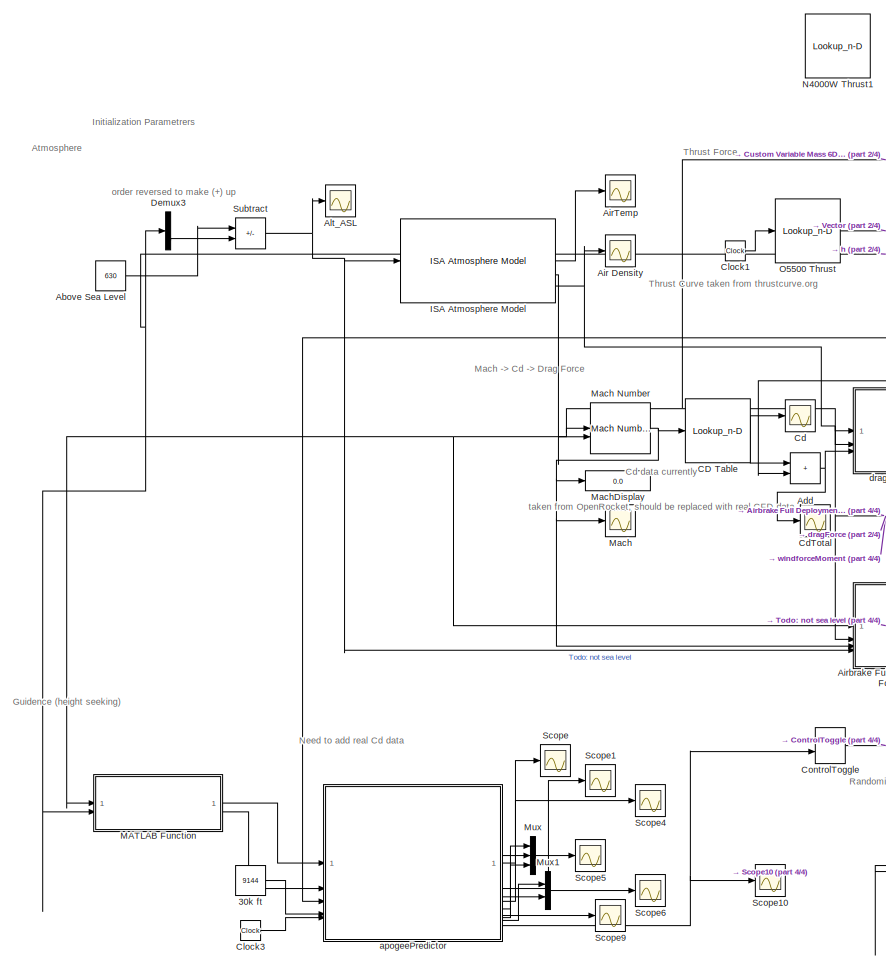
[diagram: root canvas - part 1/4, left side, full height]
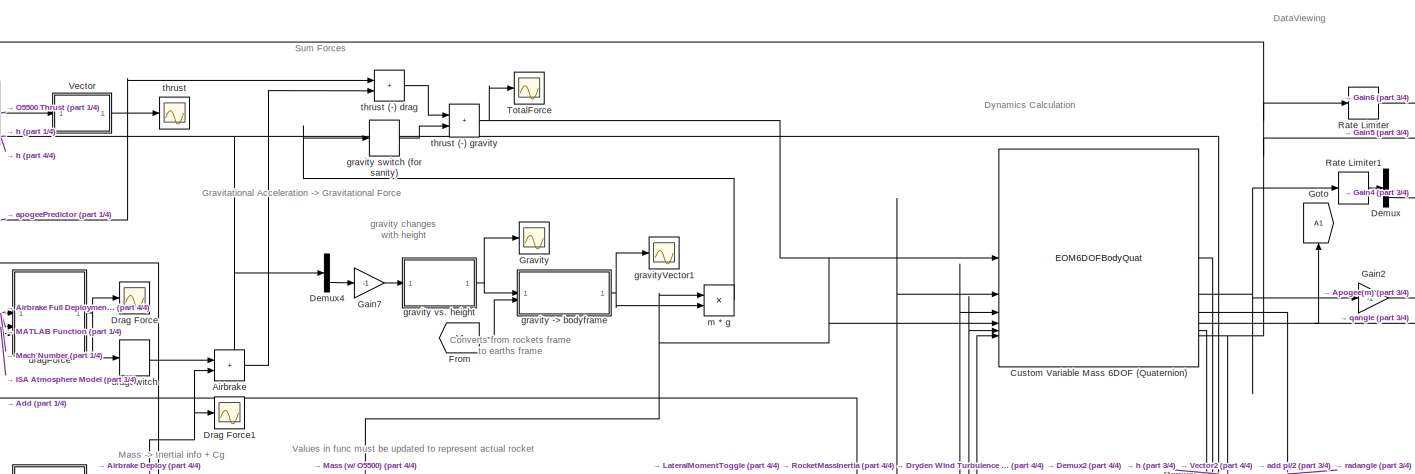
[diagram: root canvas - part 2/4, central region]
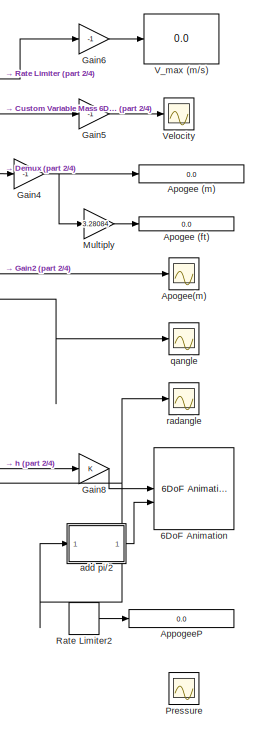
[diagram: root canvas - part 3/4, middle right region]
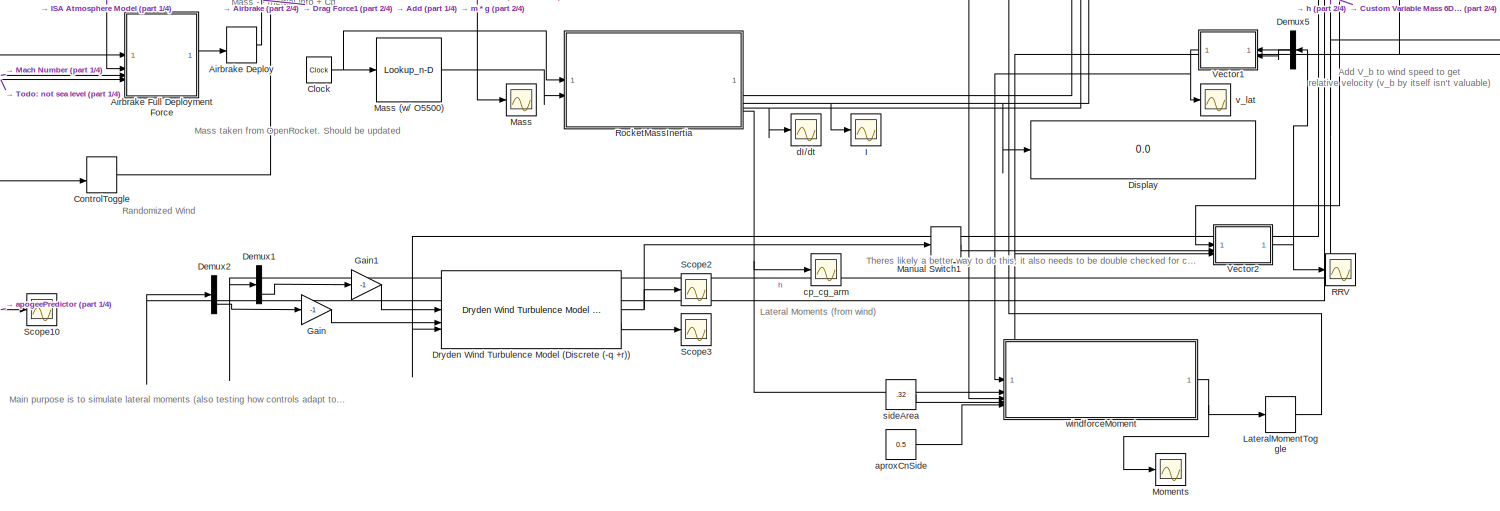
[diagram: root canvas - part 4/4, bottom center region]
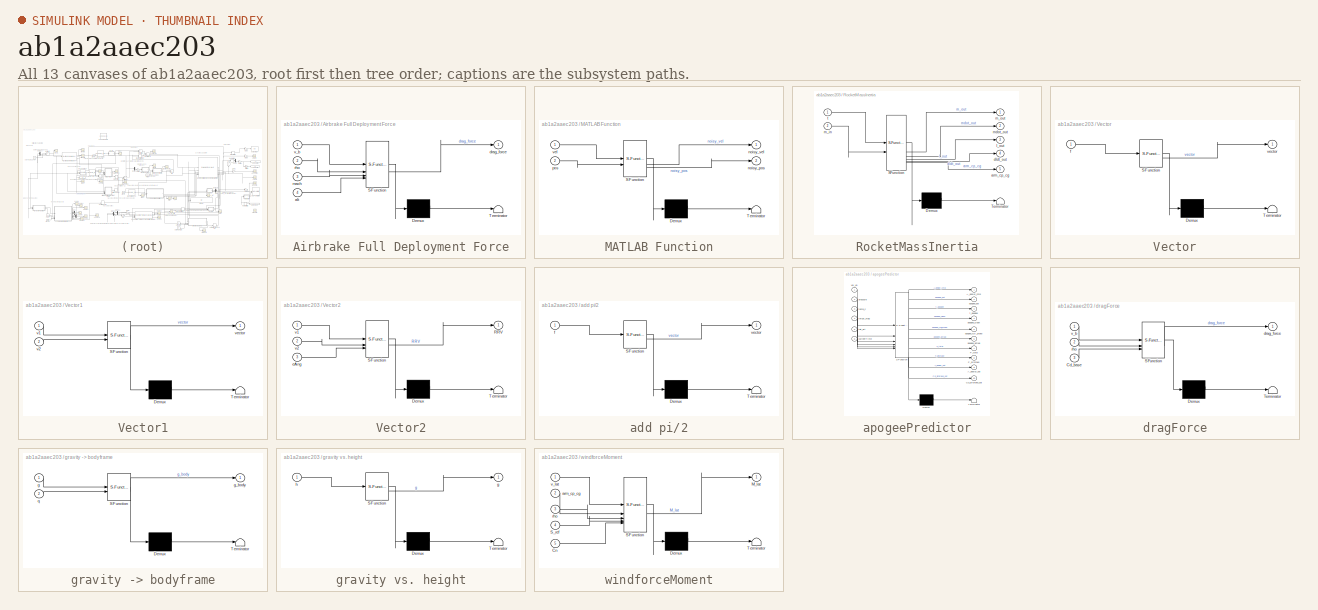
[diagram: thumbnail index - all 13 canvases of the model, root first then tree order]
MODEL slx_ab1a2aaec203
KIND model
CONFIG AbsTol = auto
CONFIG EnableMultiTasking = off
CONFIG FixedStep = auto
CONFIG MaxStep = 0.001
CONFIG MinStep = auto
CONFIG RelTol = 1e-3
CONFIG SampleTimeConstraint = Unconstrained
CONFIG SolverName = VariableStepAuto
CONFIG StartTime = 0.0
CONFIG StopTime = 65
WORKSPACE source: mxarray member
WORKSPACE bca: Simulink.Parameter (value not decoded)
WORKSPACE brakeAngle: Simulink.Parameter (value not decoded)
BLOCK [Constant] 30k ft
  Value = 9144
BLOCK [Reference] 6DoF Animation  REF=aerolibanim/6DoF Animation
  SourceBlock = aerolibanim/6DoF Animation
  SourceType = 6DoF_Animation
BLOCK [Constant] Above Sea Level
  Value = 630
BLOCK [Sum] Add
  IconShape = rectangular
BLOCK [Scope] Air Density
  ActiveDisplayYMaximum = 1.3513391175478189
  ActiveDisplayYMinimum = 0.32836250442397086
  DataLoggingVariableName = ScopeData2
  Floating = off
  GraphicalSettings = {"Style":{"BackgroundColor":[0.12941176470588237,0.12941176470588237,0.12941176470588237],"AxesColor":[0.07058823529411765,0.07058823529411765,0.07058823529411765],"LabelsColor":[0.8509803921568627,0.8509803921568627,0.8509803921568627],"PreserveColors":false,"Visible":[true],"LineStyle":["-"],"LineWidth":[1.5],"BarWidth":[0.9],"LineColor":["auto"],"LineFaceAlpha":[1],"LineEdgeAlpha":[1],"Marker":...<+2065ch>
  MultipleDisplayCache = [{"MaxYLimMag":1.2911709104667286,"MaxYLimReal":1.3513391175478189,"MinYLimMag":0.41329307831821793,"MinYLimReal":0.32836250442397086,"PlotAsMagnitudePhase":false,"ShowGrid":true,"ShowLegend":false,"Title":"%<SignalLabel>","YLabel":""}]
  NumInputPorts = 1
  ScopeFrameLocation = window
  WasSavedAsWebScope = on
  WindowPosition = [533.000000,232.000000,560.000000,420.000000,]
BLOCK [Scope] AirTemp
  ActiveDisplayYMaximum = 294.3971353024794
  ActiveDisplayYMinimum = 208.39933334266343
  DataLoggingVariableName = ScopeData5
  Floating = off
  GraphicalSettings = {"AxesScalingProperties":{"AlignXAxis":"Center","AlignYAxis":"Center","AutoScaleXAxisLimits":false,"AxesScaling":"Manual","AxesScalingNumUpdates":10,"ExpandOnly":true,"ScaleAxesLimitsAtStop":false,"XAxisDataRange":100,"YAxisDataRange":80},"DisplayProperties":{"ColorOrder":["auto","auto","auto","auto","auto","auto","auto","auto","auto","auto","auto","auto","auto","auto","auto","auto","auto","auto",...<+2038ch>
  MultipleDisplayCache = [{"MaxYLimMag":291.33520591859337,"MaxYLimReal":294.3971353024794,"MinYLimMag":218.53333188417,"MinYLimReal":208.39933334266343,"PlotAsMagnitudePhase":false,"ShowGrid":true,"ShowLegend":false,"Title":"%<SignalLabel>","YLabel":""}]
  NumInputPorts = 1
  ScopeFrameLocation = window
  WasSavedAsWebScope = on
  WindowPosition = [888.000000,77.000000,560.000000,420.000000,]
BLOCK [Sum] Airbrake
  IconShape = rectangular
BLOCK [ManualSwitch] Airbrake Deploy
BLOCK [SubSystem] Airbrake Full Deployment Force
  ErrorFcn = Stateflow.Translate.translate
  PermitHierarchicalResolution = ExplicitOnly
  SFBlockType = MATLAB Function
  TreatAsAtomicUnit = on
BLOCK [Demux] Airbrake Full Deployment Force/ Demux 
  Outputs = 1
BLOCK [S-Function] Airbrake Full Deployment Force/ SFunction 
  EnableBusSupport = off
  FunctionName = sf_sfun
  PortCounts = [4 2]
  SFcnIsStateOwnerBlock = off
  SFunctionDeploymentMode = off
  Tag = Stateflow S-Function 12
BLOCK [Terminator] Airbrake Full Deployment Force/ Terminator 
BLOCK [Inport] Airbrake Full Deployment Force/alt
  Port = 4
BLOCK [Outport] Airbrake Full Deployment Force/drag_force
BLOCK [Inport] Airbrake Full Deployment Force/mach
  Port = 3
BLOCK [Inport] Airbrake Full Deployment Force/rho
  Port = 2
BLOCK [Inport] Airbrake Full Deployment Force/v_b
BLOCK [Scope] Alt_ASL
  ActiveDisplayYMaximum = 1
  ActiveDisplayYMinimum = -1
  DataLoggingVariableName = ScopeData15
  Floating = off
  GraphicalSettings = {"Style":{"BackgroundColor":[0.12941176470588237,0.12941176470588237,0.12941176470588237],"AxesColor":[0.07058823529411765,0.07058823529411765,0.07058823529411765],"LabelsColor":[0.8509803921568627,0.8509803921568627,0.8509803921568627],"PreserveColors":false,"Visible":[true],"LineStyle":["-"],"LineWidth":[1.5],"BarWidth":[0.9],"LineColor":["auto"],"LineFaceAlpha":[1],"LineEdgeAlpha":[1],"Marker":...<+1898ch>
  MultipleDisplayCache = [{"MaxYLimMag":1,"MaxYLimReal":1,"MinYLimMag":0,"MinYLimReal":-1,"PlotAsMagnitudePhase":false,"ShowGrid":true,"ShowLegend":false,"Title":"%<SignalLabel>","YLabel":""}]
  NumInputPorts = 1
  ScopeFrameLocation = window
  WasSavedAsWebScope = on
  WindowPosition = [620.000000,375.000000,560.000000,420.000000,]
BLOCK [Display] Apogee (ft)
  Decimation = 1
  Format = long
BLOCK [Display] Apogee (m)
  Decimation = 4
  Format = long
BLOCK [Scope] Apogee(m)
  ActiveDisplayYMaximum = 11354.709569858003
  ActiveDisplayYMinimum = -3110.5103645307609
  Floating = off
  GraphicalSettings = {"Style":{"BackgroundColor":[0.12941176470588237,0.12941176470588237,0.12941176470588237],"AxesColor":[0.07058823529411765,0.07058823529411765,0.07058823529411765],"LabelsColor":[0.8509803921568627,0.8509803921568627,0.8509803921568627],"PreserveColors":false,"Visible":[true,true,true],"LineStyle":["-","-","-"],"LineWidth":[1.5,1.5,1.5],"BarWidth":[0.9,0.9,0.9],"LineColor":["auto","auto","auto"],"...<+2226ch>
  MultipleDisplayCache = [{"MaxYLimMag":11001.884939511598,"MaxYLimReal":11354.709569858003,"MinYLimMag":0,"MinYLimReal":-3110.5103645307609,"PlotAsMagnitudePhase":false,"ShowGrid":true,"ShowLegend":false,"Title":"%<SignalLabel>","YLabel":""}]
  NumInputPorts = 1
  ScopeFrameLocation = container
  WasSavedAsWebScope = on
  WindowPosition = [116.000000,107.000000,1280.000000,768.000000,]
BLOCK [Display] AppogeeP
  Decimation = 4
  Format = long
BLOCK [Lookup_n-D] CD Table
  BreakpointsForDimension1 = [0.007, 0.008, 0.01, 0.013, 0.017, 0.024, 0.03, 0.033, 0.037, 0.042, 0.048, 0.051, 0.056, 0.061, 0.067, 0.074, 0.08, 0.086, 0.092, 0.098, 0.102, 0.108, 0.114, 0.12, 0.126, 0.132, 0.138, 0.147, 0.161, 0.182, 0.198, 0.221, 0.248, 0.282, 0.316, 0.34, 0.375, 0.41, 0.432, 0.465, 0.502, 0.538, 0.575, 0.612, 0.647, 0.685, 0.723, 0.76, 0.798, 0.837, 0.858, 0.89, 0.929, 0.968, 1.007, 1.033, 1.071, 1.103, 1...<+432ch>
  InputPortMap = u0
  InternalRulePriority = Speed
  NumberOfTableDimensions = 1
  RndMeth = Simplest
  Table = [0.463, 0.452, 0.425, 0.409, 0.389, 0.367, 0.354, 0.348, 0.341, 0.339, 0.339, 0.339, 0.339, 0.339, 0.339, 0.339, 0.339, 0.339, 0.339, 0.339, 0.339, 0.34, 0.34, 0.34, 0.34, 0.34, 0.34, 0.34, 0.34, 0.34, 0.34, 0.341, 0.341, 0.342, 0.342, 0.343, 0.344, 0.344, 0.345, 0.346, 0.347, 0.349, 0.35, 0.352, 0.354, 0.356, 0.359, 0.362, 0.366, 0.372, 0.375, 0.383, 0.382, 0.377, 0.381, 0.408, 0.427, 0.426, 0.41...<+433ch>
BLOCK [Scope] Cd
  ActiveDisplayYMaximum = 1.8026279606623583
  ActiveDisplayYMinimum = -0.14855998025047912
  DataLoggingVariableName = ScopeData8
  Floating = off
  GraphicalSettings = {"Style":{"BackgroundColor":[0.12941176470588237,0.12941176470588237,0.12941176470588237],"AxesColor":[0.07058823529411765,0.07058823529411765,0.07058823529411765],"LabelsColor":[0.8509803921568627,0.8509803921568627,0.8509803921568627],"PreserveColors":false,"Visible":[true],"LineStyle":["-"],"LineWidth":[1.5],"BarWidth":[0.9],"LineColor":["auto"],"LineFaceAlpha":[1],"LineEdgeAlpha":[1],"Marker":...<+2001ch>
  LayoutDimensionsString = [1,1]
  MultipleDisplayCache = [{"MaxYLimMag":4.985729964710127,"MaxYLimReal":1.8026279606623583,"MinYLimMag":0,"MinYLimReal":-0.14855998025047912,"PlotAsMagnitudePhase":false,"ShowGrid":true,"ShowLegend":false,"Title":"%<SignalLabel>","YLabel":""}]
  NumInputPorts = 1
  ScopeFrameLocation = window
  WasSavedAsWebScope = on
  WindowPosition = [380.000000,217.000000,825.000000,637.000000,]
BLOCK [Scope] CdTotal
  ActiveDisplayYMaximum = 2.158206654782723
  ActiveDisplayYMinimum = -0.16752402901527019
  DataLoggingVariableName = ScopeData20
  Floating = off
  GraphicalSettings = {"Style":{"BackgroundColor":[0.12941176470588237,0.12941176470588237,0.12941176470588237],"AxesColor":[0.07058823529411765,0.07058823529411765,0.07058823529411765],"LabelsColor":[0.8509803921568627,0.8509803921568627,0.8509803921568627],"PreserveColors":false,"Visible":[true],"LineStyle":["-"],"LineWidth":[1.5],"BarWidth":[0.9],"LineColor":["auto"],"LineFaceAlpha":[1],"LineEdgeAlpha":[1],"Marker":...<+1987ch>
  LayoutDimensionsString = [1,1]
  MultipleDisplayCache = [{"MaxYLimMag":4.985729964710127,"MaxYLimReal":2.158206654782723,"MinYLimMag":0,"MinYLimReal":-0.16752402901527019,"PlotAsMagnitudePhase":false,"ShowGrid":true,"ShowLegend":false,"Title":"%<SignalLabel>","YLabel":""}]
  NumInputPorts = 1
  ScopeFrameLocation = container
  WasSavedAsWebScope = on
  WindowPosition = [116.000000,107.000000,1280.000000,768.000000,]
BLOCK [Clock] Clock
BLOCK [Clock] Clock1
  DisplayTime = on
BLOCK [Clock] Clock3
BLOCK [ManualSwitch] ControlToggle
  CurrentSetting = 0
BLOCK [EOM6DOFBodyQuat] Custom Variable Mass 6DOF (Quaternion)
  mtype = Custom Variable
  vre_flag = on
BLOCK [Demux] Demux
  Outputs = 3
BLOCK [Demux] Demux1
  Outputs = 3
BLOCK [Demux] Demux2
  Outputs = 3
BLOCK [Demux] Demux3
  Outputs = 3
BLOCK [Demux] Demux4
  Outputs = 3
BLOCK [Demux] Demux5
  Outputs = 3
BLOCK [Display] Display
  Decimation = 1
BLOCK [Scope] Drag Force
  ActiveDisplayYMaximum = 2083.9665587051204
  ActiveDisplayYMinimum = -997.38496868055154
  DataLoggingVariableName = ScopeData3
  Floating = off
  GraphicalSettings = {"Style":{"BackgroundColor":[0.12941176470588237,0.12941176470588237,0.12941176470588237],"AxesColor":[0.07058823529411765,0.07058823529411765,0.07058823529411765],"LabelsColor":[0.8509803921568627,0.8509803921568627,0.8509803921568627],"PreserveColors":false,"Visible":[true,true,true],"LineStyle":["-","-","-"],"LineWidth":[1.5,1.5,1.5],"BarWidth":[0.9,0.9,0.9],"LineColor":["auto","auto","auto"],"...<+2248ch>
  MultipleDisplayCache = [{"MaxYLimMag":950.8017425399529,"MaxYLimReal":2083.9665587051204,"MinYLimMag":0,"MinYLimReal":-997.38496868055154,"PlotAsMagnitudePhase":false,"ShowGrid":true,"ShowLegend":false,"Title":"%<SignalLabel>","YLabel":""}]
  NumInputPorts = 1
  ScopeFrameLocation = container
  WasSavedAsWebScope = on
  WindowPosition = [116.000000,107.000000,1280.000000,768.000000,]
BLOCK [Scope] Drag Force1
  ActiveDisplayYMaximum = 1236.5317211338333
  ActiveDisplayYMinimum = -119.15745886307855
  DataLoggingVariableName = ScopeData32
  Floating = off
  GraphicalSettings = {"Style":{"BackgroundColor":[0.12941176470588237,0.12941176470588237,0.12941176470588237],"AxesColor":[0.07058823529411765,0.07058823529411765,0.07058823529411765],"LabelsColor":[0.8509803921568627,0.8509803921568627,0.8509803921568627],"PreserveColors":false,"Visible":[true,true,true],"LineStyle":["-","-","-"],"LineWidth":[1.5,1.5,1.5],"BarWidth":[0.9,0.9,0.9],"LineColor":["auto","auto","auto"],"...<+2286ch>
  MultipleDisplayCache = [{"MaxYLimMag":950.8017425399529,"MaxYLimReal":1236.5317211338333,"MinYLimMag":0,"MinYLimReal":-119.15745886307855,"PlotAsMagnitudePhase":false,"ShowGrid":true,"ShowLegend":false,"Title":"%<SignalLabel>","YLabel":""}]
  NumInputPorts = 1
  ScopeFrameLocation = container
  WasSavedAsWebScope = on
  WindowPosition = [116.000000,107.000000,1280.000000,768.000000,]
BLOCK [Reference] Dryden Wind Turbulence Model (Discrete (-q +r))  REF=aerolibwind2/Dryden Wind Turbulence Model 
(Continuous (+q -r))
  LibrarySourceBlock = aerolibwind2/Dryden Wind Turbulence Model \n(Discrete (-q +r))
  SourceBlock = aerolibwind2/Dryden Wind Turbulence Model \n(Continuous (+q -r))
  SourceType = Wind Turbulence Model
BLOCK [From] From
  GotoTag = A1
BLOCK [Gain] Gain
  Gain = -1
BLOCK [Gain] Gain1
  Gain = -1
BLOCK [Gain] Gain2
  Gain = -1
BLOCK [Gain] Gain4
  Gain = -1
BLOCK [Gain] Gain5
  Gain = -1
BLOCK [Gain] Gain6
  Gain = -1
BLOCK [Gain] Gain7
  Gain = -1
BLOCK [Gain] Gain8
BLOCK [Goto] Goto
  GotoTag = A1
  NameLocation = right
BLOCK [Scope] Gravity
  ActiveDisplayYMaximum = 9.8834339095755688
  ActiveDisplayYMinimum = 9.68035453491508
  DataLoggingVariableName = ScopeData9
  Floating = off
  GraphicalSettings = {"Style":{"BackgroundColor":[0.12941176470588237,0.12941176470588237,0.12941176470588237],"AxesColor":[0.07058823529411765,0.07058823529411765,0.07058823529411765],"LabelsColor":[0.8509803921568627,0.8509803921568627,0.8509803921568627],"PreserveColors":false,"Visible":[true],"LineStyle":["-"],"LineWidth":[1.5],"BarWidth":[0.9],"LineColor":["auto"],"LineFaceAlpha":[1],"LineEdgeAlpha":[1],"Marker":...<+2043ch>
  MultipleDisplayCache = [{"MaxYLimMag":9.8615634071129268,"MaxYLimReal":9.8834339095755688,"MinYLimMag":9.7431739813632916,"MinYLimReal":9.68035453491508,"PlotAsMagnitudePhase":false,"ShowGrid":true,"ShowLegend":false,"Title":"%<SignalLabel>","YLabel":""}]
  NumInputPorts = 1
  ScopeFrameLocation = window
  WasSavedAsWebScope = on
  WindowPosition = [642.000000,90.000000,560.000000,420.000000,]
BLOCK [Scope] I
  ActiveDisplayYMaximum = 8.771099345696328
  ActiveDisplayYMinimum = -2.0972210212356206
  DataLoggingVariableName = ScopeData12
  Floating = off
  GraphicalSettings = {"AxesScalingProperties":{"AlignXAxis":"Center","AlignYAxis":"Center","AutoScaleXAxisLimits":false,"AxesScaling":"Manual","AxesScalingNumUpdates":10,"ExpandOnly":true,"ScaleAxesLimitsAtStop":false,"XAxisDataRange":100,"YAxisDataRange":80},"DisplayProperties":{"ColorOrder":["auto","auto","auto","auto","auto","auto","auto","auto","auto","auto","auto","auto","auto","auto","auto","auto","auto","auto",...<+3240ch>
  MultipleDisplayCache = [{"MaxYLimMag":7.7976677635930756,"MaxYLimReal":8.771099345696328,"MinYLimMag":0,"MinYLimReal":-2.0972210212356206,"PlotAsMagnitudePhase":false,"ShowGrid":true,"ShowLegend":false,"Title":"%<SignalLabel>","YLabel":""}]
  NumInputPorts = 1
  ScopeFrameLocation = window
  WasSavedAsWebScope = on
  WindowPosition = [1068.000000,381.000000,560.000000,420.000000,]
BLOCK [Reference] ISA Atmosphere Model  REF=aerolibatmos2/ISA Atmosphere Model
  SourceBlock = aerolibatmos2/ISA Atmosphere Model
  SourceType = International Standard Atmosphere Model
BLOCK [ManualSwitch] LateralMomentToggle
  CurrentSetting = 0
BLOCK [SubSystem] MATLAB Function
  ErrorFcn = Stateflow.Translate.translate
  PermitHierarchicalResolution = ExplicitOnly
  SFBlockType = MATLAB Function
  TreatAsAtomicUnit = on
BLOCK [Demux] MATLAB Function/ Demux 
  Outputs = 1
BLOCK [S-Function] MATLAB Function/ SFunction 
  EnableBusSupport = off
  FunctionName = sf_sfun
  PortCounts = [2 3]
  SFcnIsStateOwnerBlock = off
  SFunctionDeploymentMode = off
  Tag = Stateflow S-Function 9
BLOCK [Terminator] MATLAB Function/ Terminator 
BLOCK [Outport] MATLAB Function/noisy_pos
  Port = 2
BLOCK [Outport] MATLAB Function/noisy_vel
BLOCK [Inport] MATLAB Function/pos
  Port = 2
BLOCK [Inport] MATLAB Function/vel
BLOCK [Scope] Mach
  ActiveDisplayYMaximum = 2.052851576354866
  ActiveDisplayYMinimum = -0.28015884352453835
  DataLoggingVariableName = ScopeData4
  Floating = off
  GraphicalSettings = {"Style":{"BackgroundColor":[0.12941176470588237,0.12941176470588237,0.12941176470588237],"AxesColor":[0.07058823529411765,0.07058823529411765,0.07058823529411765],"LabelsColor":[0.8509803921568627,0.8509803921568627,0.8509803921568627],"PreserveColors":false,"Visible":[true],"LineStyle":["-"],"LineWidth":[1.5],"BarWidth":[0.9],"LineColor":["auto"],"LineFaceAlpha":[1],"LineEdgeAlpha":[1],"Marker":...<+2007ch>
  LayoutDimensionsString = [1,1]
  MultipleDisplayCache = [{"MaxYLimMag":1.9997232170394896,"MaxYLimReal":2.052851576354866,"MinYLimMag":0,"MinYLimReal":-0.28015884352453835,"PlotAsMagnitudePhase":false,"ShowGrid":true,"ShowLegend":false,"Title":"%<SignalLabel>","YLabel":""}]
  NumInputPorts = 1
  ScopeFrameLocation = window
  WasSavedAsWebScope = on
  WindowPosition = [279.000000,137.000000,825.000000,637.000000,]
BLOCK [Reference] Mach Number  REF=aerolibasang/Mach Number
  SourceBlock = aerolibasang/Mach Number
  SourceType = Mach Number
BLOCK [Display] MachDisplay
  Decimation = 1
BLOCK [ManualSwitch] Manual Switch1
  CurrentSetting = 0
BLOCK [Scope] Mass
  ActiveDisplayYMaximum = 34.057183726794406
  ActiveDisplayYMinimum = 17.378289742266098
  DataLoggingVariableName = ScopeData7
  Floating = off
  GraphicalSettings = {"AxesScalingProperties":{"AlignXAxis":"Center","AlignYAxis":"Center","AutoScaleXAxisLimits":false,"AxesScaling":"Manual","AxesScalingNumUpdates":10,"ExpandOnly":true,"ScaleAxesLimitsAtStop":false,"XAxisDataRange":100,"YAxisDataRange":80},"DisplayProperties":{"ColorOrder":["auto","auto","auto","auto","auto","auto","auto","auto","auto","auto","auto","auto","auto","auto","auto","auto","auto","auto",...<+2056ch>
  MultipleDisplayCache = [{"MaxYLimMag":29.334452813349998,"MaxYLimReal":34.057183726794406,"MinYLimMag":27.010128479850003,"MinYLimReal":17.378289742266098,"PlotAsMagnitudePhase":false,"ShowGrid":true,"ShowLegend":false,"Title":"%<SignalLabel>","YLabel":""}]
  NumInputPorts = 1
  ScopeFrameLocation = window
  WasSavedAsWebScope = on
  WindowPosition = [753.000000,406.000000,560.000000,420.000000,]
BLOCK [Lookup_n-D] Mass (w// O5500)
  BreakpointsForDimension1 = [0, 0.009, 0.019, 0.029, 0.039, 0.044, 0.051, 0.063, 0.073, 0.078, 0.086, 0.094, 0.104, 0.109, 0.117, 0.125, 0.135, 0.147, 0.157, 0.167, 0.177, 0.187, 0.194, 0.204, 0.214, 0.224, 0.234, 0.244, 0.254, 0.269, 0.292, 0.325, 0.35, 0.387, 0.428, 0.478, 0.528, 0.563, 0.613, 0.663, 0.694, 0.74, 0.79, 0.84, 0.891, 0.941, 0.988, 1.038, 1.088, 1.138, 1.188, 1.238, 1.266, 1.308, 1.358, 1.408, 1.458, 1.491, 1...<+505ch>
  BreakpointsForDimension1FirstPoint = 0
  BreakpointsForDimension1Spacing = .05
  ExtrapMethod = Clip
  InputPortMap = u0
  InternalRulePriority = Speed
  NumberOfTableDimensions = 1
  RndMeth = Simplest
  SupportTunableSize = on
  Table = [31.41, 31.41, 31.39, 31.38, 31.36, 31.35, 31.33, 31.29, 31.26, 31.25, 31.22, 31.2, 31.17, 31.15, 31.13, 31.1, 31.07, 31.04, 31.01, 30.98, 30.95, 30.92, 30.9, 30.86, 30.83, 30.8, 30.77, 30.74, 30.71, 30.67, 30.6, 30.5, 30.42, 30.3, 30.17, 30.01, 29.84, 29.73, 29.56, 29.39, 29.29, 29.13, 28.96, 28.79, 28.62, 28.45, 28.28, 28.11, 27.93, 27.76, 27.59, 27.41, 27.32, 27.17, 26.99, 26.82, 26.64, 26.53, ...<+511ch>
  UseLastTableValue = on
BLOCK [Scope] Moments
  ActiveDisplayYMaximum = 0.019814293763566297
  ActiveDisplayYMinimum = -0.037322938130257846
  DataLoggingVariableName = ScopeData19
  Floating = off
  GraphicalSettings = {"AxesScalingProperties":{"AlignXAxis":"Center","AlignYAxis":"Center","AutoScaleXAxisLimits":false,"AxesScaling":"Manual","AxesScalingNumUpdates":10,"ExpandOnly":true,"ScaleAxesLimitsAtStop":false,"XAxisDataRange":100,"YAxisDataRange":80},"DisplayProperties":{"ColorOrder":["auto","auto","auto","auto","auto","auto","auto","auto","auto","auto","auto","auto","auto","auto","auto","auto","auto","auto",...<+2306ch>
  MultipleDisplayCache = [{"MaxYLimMag":0.13966262880515976,"MaxYLimReal":0.019814293763566297,"MinYLimMag":0,"MinYLimReal":-0.037322938130257846,"PlotAsMagnitudePhase":false,"ShowGrid":true,"ShowLegend":false,"Title":"%<SignalLabel>","YLabel":""}]
  NumInputPorts = 1
  ScopeFrameLocation = window
  WasSavedAsWebScope = on
  WindowPosition = [999.000000,238.000000,560.000000,420.000000,]
BLOCK [Gain] Multiply
  Gain = 3.28084
BLOCK [Mux] Mux
  DisplayOption = bar
  Inputs = 3
BLOCK [Mux] Mux1
  DisplayOption = bar
  Inputs = 2
BLOCK [Lookup_n-D] N4000W Thrust1
  BreakpointsForDimension1 = [0.01;0.029;0.03;0.031;0.039;0.049;0.05;0.06;0.07000000000000001;0.078;0.08799999999999999;0.12;0.148;0.247;0.398;0.577;0.774;0.964;1.172;1.341;1.51;1.661;1.837;2.027;2.157;2.295;2.336;2.505;2.633;2.794;2.97;3.131;3.3;3.449;3.547;3.607;3.708;3.825;3.927;4.054;4.205;4.314;4.394;4.462;4.511;4.631;4.761;4.854;4.906]
  Commented = on
  ExtrapMethod = Clip
  InputPortMap = u0
  InternalRulePriority = Speed
  NumberOfTableDimensions = 1
  RndMeth = Simplest
  Table = [39.369999999999997;393.70100000000002;1742.126;2209.6460000000002;2874.0160000000001;2534.4490000000001;3469.4879999999998;3809.0549999999998;4079.7240000000002;4242.1260000000002;4384.8429999999998;4330.7089999999998;4227.3620000000001;4242.1260000000002;4296.2600000000002;4350.3940000000002;4438.9759999999997;4512.7950000000001;4566.9290000000001;4621.0630000000001;4621.0630000000001;4655.51199...<+454ch>
  UseLastTableValue = on
BLOCK [Lookup_n-D] O5500 Thrust
  BreakpointsForDimension1 = [0.009, 0.044, 0.063, 0.078, 0.094, 0.109, 0.125, 0.147, 0.194, 0.35, 0.428, 0.563, 0.694, 0.988, 1.266, 1.491, 1.581, 1.641, 1.684, 1.716, 1.784, 1.938, 2.138, 2.491, 2.6, 2.919, 3.022, 3.138, 3.3, 3.388, 3.441, 3.544, 3.609, 3.688, 3.778, 3.819, 3.853, 3.897, 3.981, 3.997]
  ExtrapMethod = Clip
  InputPortMap = u0
  InternalRulePriority = Speed
  NumberOfTableDimensions = 1
  RndMeth = Simplest
  Table = [20.408, 7112.245, 6734.694, 6897.959, 6612.245, 6765.306, 6540.816, 6581.633, 6520.408, 6795.918, 7091.837, 7285.714, 7408.163, 7581.633, 7622.449, 7724.49, 7653.061, 7540.816, 7500.0, 7336.735, 7224.49, 6785.714, 6326.531, 5897.959, 5704.082, 3540.816, 3408.163, 2887.755, 2234.694, 1673.469, 1489.796, 1418.367, 1295.918, 816.327, 653.061, 581.633, 489.796, 285.714, 20.408, 0.0]
  UseLastTableValue = on
BLOCK [Scope] Pressure
  ActiveDisplayYMaximum = 27734.888035030621
  ActiveDisplayYMinimum = 27434.677675772422
  DataLoggingVariableName = ScopeData28
  Floating = off
  GraphicalSettings = {"AxesScalingProperties":{"AlignXAxis":"Center","AlignYAxis":"Center","AutoScaleXAxisLimits":false,"AxesScaling":"Manual","AxesScalingNumUpdates":10,"ExpandOnly":true,"ScaleAxesLimitsAtStop":false,"XAxisDataRange":100,"YAxisDataRange":80},"DisplayProperties":{"ColorOrder":["auto","auto","auto","auto","auto","auto","auto","auto","auto","auto","auto","auto","auto","auto","auto","auto","auto","auto",...<+2070ch>
  MultipleDisplayCache = [{"MaxYLimMag":102627.31331398874,"MaxYLimReal":27734.888035030621,"MinYLimMag":16175.435142568651,"MinYLimReal":27434.677675772422,"PlotAsMagnitudePhase":false,"ShowGrid":true,"ShowLegend":false,"Title":"%<SignalLabel>","YLabel":""}]
  NumInputPorts = 1
  ScopeFrameLocation = window
  WasSavedAsWebScope = on
  WindowPosition = [620.000000,375.000000,560.000000,420.000000,]
BLOCK [Scope] RRV
  ActiveDisplayYMaximum = 87.725846488197178
  ActiveDisplayYMinimum = -147.82773037596519
  DataLoggingVariableName = ScopeData30
  Floating = off
  GraphicalSettings = {"Style":{"BackgroundColor":[0.12941176470588237,0.12941176470588237,0.12941176470588237],"AxesColor":[0.07058823529411765,0.07058823529411765,0.07058823529411765],"LabelsColor":[0.8509803921568627,0.8509803921568627,0.8509803921568627],"PreserveColors":false,"Visible":[true,true,true],"LineStyle":["-","-","-"],"LineWidth":[1.5,1.5,1.5],"BarWidth":[0.9,0.9,0.9],"LineColor":["auto","auto","auto"],"...<+2234ch>
  MultipleDisplayCache = [{"MaxYLimMag":705.17395728262409,"MaxYLimReal":87.725846488197178,"MinYLimMag":0,"MinYLimReal":-147.82773037596519,"PlotAsMagnitudePhase":false,"ShowGrid":true,"ShowLegend":true,"Title":"%<SignalLabel>","YLabel":""}]
  NumInputPorts = 1
  ScopeFrameLocation = window
  ShowLegend = on
  WasSavedAsWebScope = on
  WindowPosition = [620.000000,184.000000,974.000000,611.000000,]
BLOCK [RateLimiter] Rate Limiter
  FallingSlewLimit = -99999
  RisingSlewLimit = 0
  SampleTimeMode = inherited
BLOCK [RateLimiter] Rate Limiter1
  FallingSlewLimit = -99999
  RisingSlewLimit = 0
  SampleTimeMode = inherited
BLOCK [RateLimiter] Rate Limiter2
  FallingSlewLimit = -99999
  RisingSlewLimit = 0
  SampleTimeMode = inherited
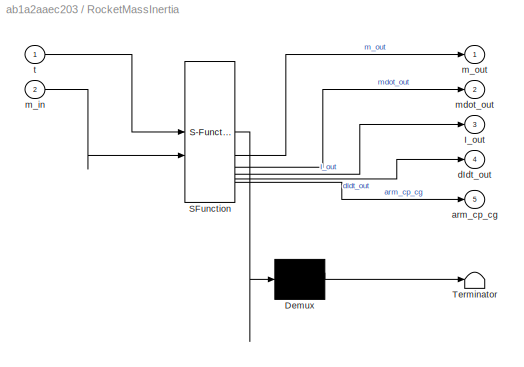
BLOCK [SubSystem] RocketMassInertia
  ErrorFcn = Stateflow.Translate.translate
  PermitHierarchicalResolution = ExplicitOnly
  SFBlockType = MATLAB Function
  TreatAsAtomicUnit = on
BLOCK [Demux] RocketMassInertia/ Demux 
  Outputs = 1
BLOCK [S-Function] RocketMassInertia/ SFunction 
  EnableBusSupport = off
  FunctionName = sf_sfun
  PortCounts = [2 6]
  SFcnIsStateOwnerBlock = off
  SFunctionDeploymentMode = off
  Tag = Stateflow S-Function 1
BLOCK [Terminator] RocketMassInertia/ Terminator 
BLOCK [Outport] RocketMassInertia/I_out
  Port = 3
BLOCK [Outport] RocketMassInertia/arm_cp_cg
  Port = 5
BLOCK [Outport] RocketMassInertia/dIdt_out
  Port = 4
BLOCK [Inport] RocketMassInertia/m_in
  Port = 2
BLOCK [Outport] RocketMassInertia/m_out
BLOCK [Outport] RocketMassInertia/mdot_out
  Port = 2
BLOCK [Inport] RocketMassInertia/t
BLOCK [Scope] Scope
  ActiveDisplayYMaximum = 1
  ActiveDisplayYMinimum = -1
  DataLoggingVariableName = ScopeData23
  Floating = off
  GraphicalSettings = {"Style":{"BackgroundColor":[0.12941176470588237,0.12941176470588237,0.12941176470588237],"AxesColor":[0.07058823529411765,0.07058823529411765,0.07058823529411765],"LabelsColor":[0.8509803921568627,0.8509803921568627,0.8509803921568627],"PreserveColors":false,"Visible":[true],"LineStyle":["-"],"LineWidth":[1.5],"BarWidth":[0.9],"LineColor":["auto"],"LineFaceAlpha":[1],"LineEdgeAlpha":[1],"Marker":...<+1944ch>
  MultipleDisplayCache = [{"MaxYLimMag":1,"MaxYLimReal":1,"MinYLimMag":0,"MinYLimReal":-1,"PlotAsMagnitudePhase":false,"ShowGrid":true,"ShowLegend":false,"Title":"%<SignalLabel>","YLabel":""}]
  NumInputPorts = 1
  ScopeFrameLocation = window
  WasSavedAsWebScope = on
  WindowPosition = [476.000000,281.000000,560.000000,420.000000,]
BLOCK [Scope] Scope1
  ActiveDisplayYMaximum = 9144.8720910615539
  ActiveDisplayYMinimum = 9142.7193978854866
  DataLoggingVariableName = ScopeData24
  Floating = off
  GraphicalSettings = {"Style":{"BackgroundColor":[0.12941176470588237,0.12941176470588237,0.12941176470588237],"AxesColor":[0.07058823529411765,0.07058823529411765,0.07058823529411765],"LabelsColor":[0.8509803921568627,0.8509803921568627,0.8509803921568627],"PreserveColors":false,"Visible":[true],"LineStyle":["-"],"LineWidth":[1.5],"BarWidth":[0.9],"LineColor":["auto"],"LineFaceAlpha":[1],"LineEdgeAlpha":[1],"Marker":...<+1934ch>
  MultipleDisplayCache = [{"MaxYLimMag":9144.8720910615539,"MaxYLimReal":9144.8720910615539,"MinYLimMag":9142.7193978854866,"MinYLimReal":9142.7193978854866,"PlotAsMagnitudePhase":false,"ShowGrid":true,"ShowLegend":false,"Title":"%<SignalLabel>","YLabel":""}]
  NumInputPorts = 1
  ScopeFrameLocation = window
  WasSavedAsWebScope = on
  WindowPosition = [794.000000,304.000000,560.000000,420.000000,]
BLOCK [Scope] Scope10
  ActiveDisplayYMaximum = 0.74648960548157
  ActiveDisplayYMinimum = -0.0829432894979522
  DataLoggingVariableName = ScopeData38
  Floating = off
  GraphicalSettings = {"Style":{"BackgroundColor":[0.12941176470588237,0.12941176470588237,0.12941176470588237],"AxesColor":[0.07058823529411765,0.07058823529411765,0.07058823529411765],"LabelsColor":[0.8509803921568627,0.8509803921568627,0.8509803921568627],"PreserveColors":false,"Visible":[true],"LineStyle":["-"],"LineWidth":[1.5],"BarWidth":[0.9],"LineColor":["auto"],"LineFaceAlpha":[1],"LineEdgeAlpha":[1],"Marker":...<+1944ch>
  MultipleDisplayCache = [{"MaxYLimMag":0.74648960548157,"MaxYLimReal":0.74648960548157,"MinYLimMag":0,"MinYLimReal":-0.0829432894979522,"PlotAsMagnitudePhase":false,"ShowGrid":true,"ShowLegend":false,"Title":"%<SignalLabel>","YLabel":""}]
  NumInputPorts = 1
  ScopeFrameLocation = window
  WasSavedAsWebScope = on
  WindowPosition = [476.000000,281.000000,560.000000,420.000000,]
BLOCK [Scope] Scope2
  ActiveDisplayYMaximum = 4.9299230789313464
  ActiveDisplayYMinimum = -3.5919608640744958
  DataLoggingVariableName = ScopeData10
  Floating = off
  GraphicalSettings = {"AxesScalingProperties":{"AlignXAxis":"Center","AlignYAxis":"Center","AutoScaleXAxisLimits":false,"AxesScaling":"Manual","AxesScalingNumUpdates":10,"ExpandOnly":true,"ScaleAxesLimitsAtStop":false,"XAxisDataRange":100,"YAxisDataRange":80},"DisplayProperties":{"ColorOrder":["auto","auto","auto","auto","auto","auto","auto","auto","auto","auto","auto","auto","auto","auto","auto","auto","auto","auto",...<+2480ch>
  MultipleDisplayCache = [{"MaxYLimMag":4.77986520486008,"MaxYLimReal":4.9299230789313464,"MinYLimMag":0,"MinYLimReal":-3.5919608640744958,"PlotAsMagnitudePhase":false,"ShowGrid":true,"ShowLegend":false,"Title":"%<SignalLabel>","YLabel":""}]
  NumInputPorts = 1
  ScopeFrameLocation = window
  WasSavedAsWebScope = on
  WindowPosition = [620.000000,375.000000,560.000000,420.000000,]
BLOCK [Scope] Scope3
  ActiveDisplayYMaximum = 1.2409351060971885E+307
  ActiveDisplayYMinimum = -6.9396586411031267E+307
  DataLoggingVariableName = ScopeData13
  Floating = off
  GraphicalSettings = {"Style":{"BackgroundColor":[0.12941176470588237,0.12941176470588237,0.12941176470588237],"AxesColor":[0.07058823529411765,0.07058823529411765,0.07058823529411765],"LabelsColor":[0.8509803921568627,0.8509803921568627,0.8509803921568627],"PreserveColors":false,"Visible":[true,true,true],"LineStyle":["-","-","-"],"LineWidth":[1.5,1.5,1.5],"BarWidth":[0.9,0.9,0.9],"LineColor":["auto","auto","auto"],"...<+2522ch>
  MultipleDisplayCache = [{"MaxYLimMag":6.9396586411031267E+307,"MaxYLimReal":1.2409351060971885E+307,"MinYLimMag":0,"MinYLimReal":-6.9396586411031267E+307,"PlotAsMagnitudePhase":false,"ShowGrid":true,"ShowLegend":false,"Title":"%<SignalLabel>","YLabel":""}]
  NumInputPorts = 1
  ScopeFrameLocation = window
  WasSavedAsWebScope = on
  WindowPosition = [620.000000,375.000000,560.000000,420.000000,]
BLOCK [Scope] Scope4
  ActiveDisplayYMaximum = 37.85568534609105
  ActiveDisplayYMinimum = 37.285237055893084
  DataLoggingVariableName = ScopeData25
  Floating = off
  GraphicalSettings = {"Style":{"BackgroundColor":[0.12941176470588237,0.12941176470588237,0.12941176470588237],"AxesColor":[0.07058823529411765,0.07058823529411765,0.07058823529411765],"LabelsColor":[0.8509803921568627,0.8509803921568627,0.8509803921568627],"PreserveColors":false,"Visible":[true],"LineStyle":["-"],"LineWidth":[1.5],"BarWidth":[0.9],"LineColor":["auto"],"LineFaceAlpha":[1],"LineEdgeAlpha":[1],"Marker":...<+1930ch>
  MultipleDisplayCache = [{"MaxYLimMag":37.85568534609105,"MaxYLimReal":37.85568534609105,"MinYLimMag":37.285237055893084,"MinYLimReal":37.285237055893084,"PlotAsMagnitudePhase":false,"ShowGrid":true,"ShowLegend":false,"Title":"%<SignalLabel>","YLabel":""}]
  NumInputPorts = 1
  ScopeFrameLocation = window
  WasSavedAsWebScope = on
  WindowPosition = [476.000000,281.000000,560.000000,420.000000,]
BLOCK [Scope] Scope5
  ActiveDisplayYMaximum = 10330.314669993058
  ActiveDisplayYMinimum = 4816.10206843553
  DataLoggingVariableName = ScopeData33
  Floating = off
  GraphicalSettings = {"Style":{"BackgroundColor":[0.12941176470588237,0.12941176470588237,0.12941176470588237],"AxesColor":[0.07058823529411765,0.07058823529411765,0.07058823529411765],"LabelsColor":[0.8509803921568627,0.8509803921568627,0.8509803921568627],"PreserveColors":false,"Visible":[true,true,true],"LineStyle":["-","-","-"],"LineWidth":[1.5,1.5,1.5],"BarWidth":[0.9,0.9,0.9],"LineColor":["auto","auto","auto"],"...<+2263ch>
  MultipleDisplayCache = [{"MaxYLimMag":10330.314669993058,"MaxYLimReal":10330.314669993058,"MinYLimMag":4816.10206843553,"MinYLimReal":4816.10206843553,"PlotAsMagnitudePhase":false,"ShowGrid":true,"ShowLegend":false,"Title":"%<SignalLabel>","YLabel":""}]
  NumInputPorts = 1
  ScopeFrameLocation = window
  WasSavedAsWebScope = on
  WindowPosition = [476.000000,281.000000,560.000000,420.000000,]
BLOCK [Scope] Scope6
  ActiveDisplayYMaximum = 8221.3279125490226
  ActiveDisplayYMinimum = -913.48015051875677
  DataLoggingVariableName = ScopeData34
  Floating = off
  GraphicalSettings = {"Style":{"BackgroundColor":[0.12941176470588237,0.12941176470588237,0.12941176470588237],"AxesColor":[0.07058823529411765,0.07058823529411765,0.07058823529411765],"LabelsColor":[0.8509803921568627,0.8509803921568627,0.8509803921568627],"PreserveColors":false,"Visible":[true,true],"LineStyle":["-","-"],"LineWidth":[1.5,1.5],"BarWidth":[0.9,0.9],"LineColor":["auto","auto"],"LineFaceAlpha":[1,1],"Li...<+2081ch>
  MultipleDisplayCache = [{"MaxYLimMag":8221.3279125490226,"MaxYLimReal":8221.3279125490226,"MinYLimMag":0,"MinYLimReal":-913.48015051875677,"PlotAsMagnitudePhase":false,"ShowGrid":true,"ShowLegend":false,"Title":"%<SignalLabel>","YLabel":""}]
  NumInputPorts = 1
  ScopeFrameLocation = window
  WasSavedAsWebScope = on
  WindowPosition = [476.000000,281.000000,560.000000,420.000000,]
BLOCK [Scope] Scope9
  ActiveDisplayYMaximum = 1
  ActiveDisplayYMinimum = -1
  DataLoggingVariableName = ScopeData37
  Floating = off
  GraphicalSettings = {"Style":{"BackgroundColor":[0.12941176470588237,0.12941176470588237,0.12941176470588237],"AxesColor":[0.07058823529411765,0.07058823529411765,0.07058823529411765],"LabelsColor":[0.8509803921568627,0.8509803921568627,0.8509803921568627],"PreserveColors":false,"Visible":[true],"LineStyle":["-"],"LineWidth":[1.5],"BarWidth":[0.9],"LineColor":["auto"],"LineFaceAlpha":[1],"LineEdgeAlpha":[1],"Marker":...<+1938ch>
  MultipleDisplayCache = [{"MaxYLimMag":1,"MaxYLimReal":1,"MinYLimMag":0,"MinYLimReal":-1,"PlotAsMagnitudePhase":false,"ShowGrid":true,"ShowLegend":false,"Title":"%<SignalLabel>","YLabel":""}]
  NumInputPorts = 1
  ScopeFrameLocation = window
  WasSavedAsWebScope = on
  WindowPosition = [476.000000,281.000000,560.000000,420.000000,]
BLOCK [Sum] Subtract
  IconShape = rectangular
  Inputs = +-
BLOCK [Scope] TotalForce
  ActiveDisplayYMaximum = 2383.8615158167772
  ActiveDisplayYMinimum = -1336.7372091363745
  DataLoggingVariableName = ScopeData6
  Floating = off
  GraphicalSettings = {"Style":{"BackgroundColor":[0.12941176470588237,0.12941176470588237,0.12941176470588237],"AxesColor":[0.07058823529411765,0.07058823529411765,0.07058823529411765],"LabelsColor":[0.8509803921568627,0.8509803921568627,0.8509803921568627],"PreserveColors":false,"Visible":[true,true,true],"LineStyle":["-","-","-"],"LineWidth":[1.5,1.5,1.5],"BarWidth":[0.9,0.9,0.9],"LineColor":["auto","auto","auto"],"...<+2904ch>
  MultipleDisplayCache = [{"MaxYLimMag":89.088651933281255,"MaxYLimReal":2383.8615158167772,"MinYLimMag":0,"MinYLimReal":-1336.7372091363745,"PlotAsMagnitudePhase":false,"ShowGrid":true,"ShowLegend":false,"Title":"%<SignalLabel>","YLabel":""}]
  NumInputPorts = 1
  ScopeFrameLocation = container
  WasSavedAsWebScope = on
  WindowPosition = [116.000000,107.000000,1280.000000,768.000000,]
BLOCK [Display] V_max (m//s)
  Decimation = 1
BLOCK [SubSystem] Vector
  ErrorFcn = Stateflow.Translate.translate
  PermitHierarchicalResolution = ExplicitOnly
  SFBlockType = MATLAB Function
  TreatAsAtomicUnit = on
BLOCK [Demux] Vector/ Demux 
  Outputs = 1
BLOCK [S-Function] Vector/ SFunction 
  EnableBusSupport = off
  FunctionName = sf_sfun
  PortCounts = [1 2]
  SFcnIsStateOwnerBlock = off
  SFunctionDeploymentMode = off
  Tag = Stateflow S-Function 7
BLOCK [Terminator] Vector/ Terminator 
BLOCK [Inport] Vector/f
BLOCK [Outport] Vector/vector
BLOCK [SubSystem] Vector1
  ErrorFcn = Stateflow.Translate.translate
  PermitHierarchicalResolution = ExplicitOnly
  SFBlockType = MATLAB Function
  TreatAsAtomicUnit = on
BLOCK [Demux] Vector1/ Demux 
  Outputs = 1
BLOCK [S-Function] Vector1/ SFunction 
  EnableBusSupport = off
  FunctionName = sf_sfun
  PortCounts = [2 2]
  SFcnIsStateOwnerBlock = off
  SFunctionDeploymentMode = off
  Tag = Stateflow S-Function 10
BLOCK [Terminator] Vector1/ Terminator 
BLOCK [Inport] Vector1/v1
BLOCK [Inport] Vector1/v2
  Port = 2
BLOCK [Outport] Vector1/vector
BLOCK [SubSystem] Vector2
  ErrorFcn = Stateflow.Translate.translate
  PermitHierarchicalResolution = ExplicitOnly
  SFBlockType = MATLAB Function
  TreatAsAtomicUnit = on
BLOCK [Demux] Vector2/ Demux 
  Outputs = 1
BLOCK [S-Function] Vector2/ SFunction 
  EnableBusSupport = off
  FunctionName = sf_sfun
  PortCounts = [3 2]
  SFcnIsStateOwnerBlock = off
  SFunctionDeploymentMode = off
  Tag = Stateflow S-Function 11
BLOCK [Terminator] Vector2/ Terminator 
BLOCK [Outport] Vector2/RRV
BLOCK [Inport] Vector2/eAng
  Port = 3
BLOCK [Inport] Vector2/v1
BLOCK [Inport] Vector2/v2
  Port = 2
BLOCK [Scope] Velocity
  ActiveDisplayYMaximum = 736.30958702242276
  ActiveDisplayYMinimum = -269.31086851436129
  DataLoggingVariableName = ScopeData1
  Floating = off
  GraphicalSettings = {"Style":{"BackgroundColor":[0.12941176470588237,0.12941176470588237,0.12941176470588237],"AxesColor":[0.07058823529411765,0.07058823529411765,0.07058823529411765],"LabelsColor":[0.8509803921568627,0.8509803921568627,0.8509803921568627],"PreserveColors":false,"Visible":[true,true,true],"LineStyle":["-","-","-"],"LineWidth":[1.5,1.5,1.5],"BarWidth":[0.9,0.9,0.9],"LineColor":["auto","auto","auto"],"...<+2220ch>
  MultipleDisplayCache = [{"MaxYLimMag":705.494837378842,"MaxYLimReal":736.30958702242276,"MinYLimMag":0,"MinYLimReal":-269.31086851436129,"PlotAsMagnitudePhase":false,"ShowGrid":true,"ShowLegend":false,"Title":"%<SignalLabel>","YLabel":""}]
  NumInputPorts = 1
  ScopeFrameLocation = container
  WasSavedAsWebScope = on
  WindowPosition = [116.000000,107.000000,1280.000000,768.000000,]
BLOCK [SubSystem] add pi//2
  ErrorFcn = Stateflow.Translate.translate
  PermitHierarchicalResolution = ExplicitOnly
  SFBlockType = MATLAB Function
  TreatAsAtomicUnit = on
BLOCK [Demux] add pi//2/ Demux 
  Outputs = 1
BLOCK [S-Function] add pi//2/ SFunction 
  EnableBusSupport = off
  FunctionName = sf_sfun
  PortCounts = [1 2]
  SFcnIsStateOwnerBlock = off
  SFunctionDeploymentMode = off
  Tag = Stateflow S-Function 4
BLOCK [Terminator] add pi//2/ Terminator 
BLOCK [Inport] add pi//2/f
BLOCK [Outport] add pi//2/vector
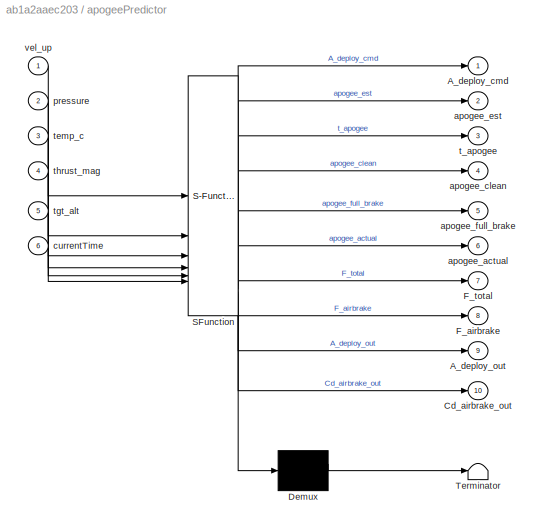
BLOCK [SubSystem] apogeePredictor
  ErrorFcn = Stateflow.Translate.translate
  PermitHierarchicalResolution = ExplicitOnly
  SFBlockType = MATLAB Function
  TreatAsAtomicUnit = on
BLOCK [Demux] apogeePredictor/ Demux 
  Outputs = 1
BLOCK [S-Function] apogeePredictor/ SFunction 
  EnableBusSupport = off
  FunctionName = sf_sfun
  PortCounts = [6 11]
  SFcnIsStateOwnerBlock = off
  SFunctionDeploymentMode = off
  Tag = Stateflow S-Function 8
BLOCK [Terminator] apogeePredictor/ Terminator 
BLOCK [Outport] apogeePredictor/A_deploy_cmd
BLOCK [Outport] apogeePredictor/A_deploy_out
  Port = 9
BLOCK [Outport] apogeePredictor/Cd_airbrake_out
  Port = 10
BLOCK [Outport] apogeePredictor/F_airbrake
  Port = 8
BLOCK [Outport] apogeePredictor/F_total
  Port = 7
BLOCK [Outport] apogeePredictor/apogee_actual
  Port = 6
BLOCK [Outport] apogeePredictor/apogee_clean
  Port = 4
BLOCK [Outport] apogeePredictor/apogee_est
  Port = 2
BLOCK [Outport] apogeePredictor/apogee_full_brake
  Port = 5
BLOCK [Inport] apogeePredictor/currentTime
  Port = 6
BLOCK [Inport] apogeePredictor/pressure
  Port = 2
BLOCK [Outport] apogeePredictor/t_apogee
  Port = 3
BLOCK [Inport] apogeePredictor/temp_c
  Port = 3
BLOCK [Inport] apogeePredictor/tgt_alt
  Port = 5
BLOCK [Inport] apogeePredictor/thrust_mag
  Port = 4
BLOCK [Inport] apogeePredictor/vel_up
BLOCK [Constant] aproxCnSide
  Value = 0.5
BLOCK [Scope] cp_cg_arm
  ActiveDisplayYMaximum = 0.54777232101906159
  ActiveDisplayYMinimum = -0.50903350176661866
  DataLoggingVariableName = ScopeData21
  Floating = off
  GraphicalSettings = {"AxesScalingProperties":{"AlignXAxis":"Center","AlignYAxis":"Center","AutoScaleXAxisLimits":false,"AxesScaling":"Manual","AxesScalingNumUpdates":10,"ExpandOnly":true,"ScaleAxesLimitsAtStop":false,"XAxisDataRange":100,"YAxisDataRange":80},"DisplayProperties":{"ColorOrder":["auto","auto","auto","auto","auto","auto","auto","auto","auto","auto","auto","auto","auto","auto","auto","auto","auto","auto",...<+1952ch>
  MultipleDisplayCache = [{"MaxYLimMag":10,"MaxYLimReal":0.54777232101906159,"MinYLimMag":0,"MinYLimReal":-0.50903350176661866,"PlotAsMagnitudePhase":false,"ShowGrid":true,"ShowLegend":false,"Title":"%<SignalLabel>","YLabel":""}]
  NumInputPorts = 1
  ScopeFrameLocation = window
  WasSavedAsWebScope = on
  WindowPosition = [620.000000,375.000000,560.000000,420.000000,]
BLOCK [Scope] dI//dt
  ActiveDisplayYMaximum = 1
  ActiveDisplayYMinimum = -1
  DataLoggingVariableName = ScopeData11
  Floating = off
  GraphicalSettings = {"AxesScalingProperties":{"AlignXAxis":"Center","AlignYAxis":"Center","AutoScaleXAxisLimits":false,"AxesScaling":"Manual","AxesScalingNumUpdates":10,"ExpandOnly":true,"ScaleAxesLimitsAtStop":false,"XAxisDataRange":100,"YAxisDataRange":80},"DisplayProperties":{"ColorOrder":["auto","auto","auto","auto","auto","auto","auto","auto","auto","auto","auto","auto","auto","auto","auto","auto","auto","auto",...<+3182ch>
  MultipleDisplayCache = [{"MaxYLimMag":1,"MaxYLimReal":1,"MinYLimMag":0,"MinYLimReal":-1,"PlotAsMagnitudePhase":false,"ShowGrid":true,"ShowLegend":false,"Title":"%<SignalLabel>","YLabel":""}]
  NumInputPorts = 1
  ScopeFrameLocation = window
  WasSavedAsWebScope = on
  WindowPosition = [1068.000000,381.000000,560.000000,420.000000,]
BLOCK [SubSystem] dragForce
  ErrorFcn = Stateflow.Translate.translate
  PermitHierarchicalResolution = ExplicitOnly
  SFBlockType = MATLAB Function
  TreatAsAtomicUnit = on
BLOCK [Demux] dragForce/ Demux 
  Outputs = 1
BLOCK [S-Function] dragForce/ SFunction 
  EnableBusSupport = off
  FunctionName = sf_sfun
  PortCounts = [3 2]
  SFcnIsStateOwnerBlock = off
  SFunctionDeploymentMode = off
  Tag = Stateflow S-Function 2
BLOCK [Terminator] dragForce/ Terminator 
BLOCK [Inport] dragForce/Cd_base
  Port = 3
BLOCK [Outport] dragForce/drag_force
BLOCK [Inport] dragForce/rho
  Port = 2
BLOCK [Inport] dragForce/v_b
BLOCK [ManualSwitch] dragSwitch
BLOCK [SubSystem] gravity -> bodyframe
  ErrorFcn = Stateflow.Translate.translate
  PermitHierarchicalResolution = ExplicitOnly
  SFBlockType = MATLAB Function
  TreatAsAtomicUnit = on
BLOCK [Demux] gravity -> bodyframe/ Demux 
  Outputs = 1
BLOCK [S-Function] gravity -> bodyframe/ SFunction 
  EnableBusSupport = off
  FunctionName = sf_sfun
  PortCounts = [2 2]
  SFcnIsStateOwnerBlock = off
  SFunctionDeploymentMode = off
  Tag = Stateflow S-Function 6
BLOCK [Terminator] gravity -> bodyframe/ Terminator 
BLOCK [Inport] gravity -> bodyframe/g
BLOCK [Outport] gravity -> bodyframe/g_body
BLOCK [Inport] gravity -> bodyframe/q
  Port = 2
BLOCK [ManualSwitch] gravity switch (for sanity)
BLOCK [SubSystem] gravity vs. height
  ErrorFcn = Stateflow.Translate.translate
  PermitHierarchicalResolution = ExplicitOnly
  SFBlockType = MATLAB Function
  TreatAsAtomicUnit = on
BLOCK [Demux] gravity vs. height/ Demux 
  Outputs = 1
BLOCK [S-Function] gravity vs. height/ SFunction 
  EnableBusSupport = off
  FunctionName = sf_sfun
  PortCounts = [1 2]
  SFcnIsStateOwnerBlock = off
  SFunctionDeploymentMode = off
  Tag = Stateflow S-Function 3
BLOCK [Terminator] gravity vs. height/ Terminator 
BLOCK [Outport] gravity vs. height/g
BLOCK [Inport] gravity vs. height/h
BLOCK [Scope] gravityVector1
  ActiveDisplayYMaximum = 145.53469052356505
  ActiveDisplayYMinimum = -243.141573178529
  DataLoggingVariableName = ScopeData17
  Floating = off
  GraphicalSettings = {"Style":{"BackgroundColor":[0.12941176470588237,0.12941176470588237,0.12941176470588237],"AxesColor":[0.07058823529411765,0.07058823529411765,0.07058823529411765],"LabelsColor":[0.8509803921568627,0.8509803921568627,0.8509803921568627],"PreserveColors":false,"Visible":[true,true,true],"LineStyle":["-","-","-"],"LineWidth":[1.5,1.5,1.5],"BarWidth":[0.9,0.9,0.9],"LineColor":["auto","auto","auto"],"...<+2312ch>
  MultipleDisplayCache = [{"MaxYLimMag":321.48924900870691,"MaxYLimReal":145.53469052356505,"MinYLimMag":0,"MinYLimReal":-243.141573178529,"PlotAsMagnitudePhase":false,"ShowGrid":true,"ShowLegend":false,"Title":"%<SignalLabel>","YLabel":""}]
  NumInputPorts = 1
  ScopeFrameLocation = window
  WasSavedAsWebScope = on
  WindowPosition = [118.000000,297.000000,560.000000,420.000000,]
BLOCK [Product] m * g
BLOCK [Scope] qangle
  ActiveDisplayYMaximum = 1.5743399638672304
  ActiveDisplayYMinimum = -0.69920344245396326
  DataLoggingVariableName = ScopeData18
  Floating = off
  GraphicalSettings = {"AxesScalingProperties":{"AlignXAxis":"Center","AlignYAxis":"Center","AutoScaleXAxisLimits":false,"AxesScaling":"Manual","AxesScalingNumUpdates":10,"ExpandOnly":true,"ScaleAxesLimitsAtStop":false,"XAxisDataRange":100,"YAxisDataRange":80},"DisplayProperties":{"ColorOrder":["auto","auto","auto","auto","auto","auto","auto","auto","auto","auto","auto","auto","auto","auto","auto","auto","auto","auto",...<+2643ch>
  MultipleDisplayCache = [{"MaxYLimMag":3.9268535623746024,"MaxYLimReal":1.5743399638672304,"MinYLimMag":0,"MinYLimReal":-0.69920344245396326,"PlotAsMagnitudePhase":false,"ShowGrid":true,"ShowLegend":false,"Title":"%<SignalLabel>","YLabel":""}]
  NumInputPorts = 1
  ScopeFrameLocation = window
  WasSavedAsWebScope = on
  WindowPosition = [953.000000,397.000000,560.000000,420.000000,]
BLOCK [Scope] radangle
  ActiveDisplayYMaximum = 3.926971640420561
  ActiveDisplayYMinimum = -3.9268979901815744
  DataLoggingVariableName = ScopeData16
  Floating = off
  GraphicalSettings = {"Style":{"BackgroundColor":[0.12941176470588237,0.12941176470588237,0.12941176470588237],"AxesColor":[0.07058823529411765,0.07058823529411765,0.07058823529411765],"LabelsColor":[0.8509803921568627,0.8509803921568627,0.8509803921568627],"PreserveColors":false,"Visible":[true,true,true],"LineStyle":["-","-","-"],"LineWidth":[1.5,1.5,1.5],"BarWidth":[0.9,0.9,0.9],"LineColor":["auto","auto","auto"],"...<+2408ch>
  MultipleDisplayCache = [{"MaxYLimMag":3.926971640420561,"MaxYLimReal":3.926971640420561,"MinYLimMag":0,"MinYLimReal":-3.9268979901815744,"PlotAsMagnitudePhase":false,"ShowGrid":true,"ShowLegend":false,"Title":"%<SignalLabel>","YLabel":""}]
  NumInputPorts = 1
  ScopeFrameLocation = window
  WasSavedAsWebScope = on
  WindowPosition = [222.000000,403.000000,560.000000,420.000000,]
BLOCK [Constant] sideArea
  Value = .32
BLOCK [Scope] thrust
  ActiveDisplayYMaximum = 743.283877041516
  ActiveDisplayYMinimum = -6112.1844862335238
  DataLoggingVariableName = ScopeData14
  Floating = off
  GraphicalSettings = {"Style":{"BackgroundColor":[0.12941176470588237,0.12941176470588237,0.12941176470588237],"AxesColor":[0.07058823529411765,0.07058823529411765,0.07058823529411765],"LabelsColor":[0.8509803921568627,0.8509803921568627,0.8509803921568627],"PreserveColors":false,"Visible":[true,true,true],"LineStyle":["-","-","-"],"LineWidth":[1.5,1.5,1.5],"BarWidth":[0.9,0.9,0.9],"LineColor":["auto","auto","auto"],"...<+2228ch>
  MultipleDisplayCache = [{"MaxYLimMag":27458.550563979497,"MaxYLimReal":743.283877041516,"MinYLimMag":0,"MinYLimReal":-6112.1844862335238,"PlotAsMagnitudePhase":false,"ShowGrid":true,"ShowLegend":false,"Title":"%<SignalLabel>","YLabel":""}]
  NumInputPorts = 1
  ScopeFrameLocation = window
  WasSavedAsWebScope = on
  WindowPosition = [618.000000,97.000000,560.000000,420.000000,]
BLOCK [Sum] thrust (-) drag
  IconShape = rectangular
BLOCK [Sum] thrust (-) gravity
  IconShape = rectangular
BLOCK [Scope] v_lat
  ActiveDisplayYMaximum = 6.4269462139654019
  ActiveDisplayYMinimum = -11.656849883026286
  DataLoggingVariableName = ScopeData29
  Floating = off
  GraphicalSettings = {"AxesScalingProperties":{"AlignXAxis":"Center","AlignYAxis":"Center","AutoScaleXAxisLimits":false,"AxesScaling":"Manual","AxesScalingNumUpdates":10,"ExpandOnly":true,"ScaleAxesLimitsAtStop":false,"XAxisDataRange":100,"YAxisDataRange":80},"DisplayProperties":{"ColorOrder":["auto","auto","auto","auto","auto","auto","auto","auto","auto","auto","auto","auto","auto","auto","auto","auto","auto","auto",...<+2218ch>
  MultipleDisplayCache = [{"MaxYLimMag":10,"MaxYLimReal":6.4269462139654019,"MinYLimMag":0,"MinYLimReal":-11.656849883026286,"PlotAsMagnitudePhase":false,"ShowGrid":true,"ShowLegend":false,"Title":"%<SignalLabel>","YLabel":""}]
  NumInputPorts = 1
  ScopeFrameLocation = window
  WasSavedAsWebScope = on
  WindowPosition = [620.000000,375.000000,560.000000,420.000000,]
BLOCK [SubSystem] windforceMoment
  ErrorFcn = Stateflow.Translate.translate
  PermitHierarchicalResolution = ExplicitOnly
  SFBlockType = MATLAB Function
  TreatAsAtomicUnit = on
BLOCK [Demux] windforceMoment/ Demux 
  Outputs = 1
BLOCK [S-Function] windforceMoment/ SFunction 
  EnableBusSupport = off
  FunctionName = sf_sfun
  PortCounts = [5 2]
  SFcnIsStateOwnerBlock = off
  SFunctionDeploymentMode = off
  Tag = Stateflow S-Function 5
BLOCK [Terminator] windforceMoment/ Terminator 
BLOCK [Inport] windforceMoment/Cn
  Port = 5
BLOCK [Outport] windforceMoment/M_lat
BLOCK [Inport] windforceMoment/S_ref
  Port = 4
BLOCK [Inport] windforceMoment/arm_cp_cg
  Port = 2
BLOCK [Inport] windforceMoment/rho
  Port = 3
BLOCK [Inport] windforceMoment/v_lat
ANNOTATION (root): Add V_b to wind speed to get relative velocity (v_b by itself isn't valuable)
ANNOTATION (root): Atmosphere
ANNOTATION (root): Cd data currently taken from OpenRocket, should be replaced with real CFD data
ANNOTATION (root): Converts from rockets frame to earths frame
ANNOTATION (root): DataViewing
ANNOTATION (root): Dynamics Calculation
ANNOTATION (root): Gravitational Acceleration -> Gravitational Force
ANNOTATION (root): Guidence (height seeking)
ANNOTATION (root): Initialization Parametrers
ANNOTATION (root): Lateral Moments (from wind)
ANNOTATION (root): Mach -> Cd -> Drag Force
ANNOTATION (root): Main purpose is to simulate lateral moments (also testing how controls adapt to high winds). Isn't currently representative of the launch site.
ANNOTATION (root): Mass -> Inertial info + Cg
ANNOTATION (root): Mass taken from OpenRocket. Should be updated
ANNOTATION (root): Need to add real Cd data
ANNOTATION (root): Randomized Wind
ANNOTATION (root): Sum Forces
ANNOTATION (root): Theres likely a better way to do this, it also needs to be double checked for correct trig directions
ANNOTATION (root): Thrust Curve taken from thrustcurve.org
ANNOTATION (root): Thrust Force
ANNOTATION (root): Values in func must be updated to represent actual rocket
ANNOTATION (root): gravity changes with height
ANNOTATION (root): order reversed to make (+) up
LINE 30k ft:1 -> apogeePredictor:5
LINE Above Sea Level:1 -> Subtract:1
NET Add:1 -> CdTotal:1, dragForce:3
NET Airbrake Deploy:1 -> Airbrake:2, Drag Force1:1
LINE Airbrake Full Deployment Force:1 -> Airbrake Deploy:2
LINE Airbrake:1 -> thrust (-) drag:2
NET CD Table:1 -> Add:1, Cd:1
LINE Clock1:1 -> O5500 Thrust:1
LINE Clock3:1 -> apogeePredictor:6
NET Clock:1 -> Mass (w// O5500):1, RocketMassInertia:1
LINE ControlToggle:1 -> Add:2
LINE Custom Variable Mass 6DOF (Quaternion):1 -> Demux2:1
NET Custom Variable Mass 6DOF (Quaternion):2 -> Demux1:1, Demux3:1, Demux4:1, Gain2:1, Gain8:1, MATLAB Function:2, Rate Limiter1:1
NET Custom Variable Mass 6DOF (Quaternion):3 -> Vector2:3, add pi//2:1, radangle:1
NET Custom Variable Mass 6DOF (Quaternion):4 -> Goto:1, qangle:1
LINE Custom Variable Mass 6DOF (Quaternion):5 -> Dryden Wind Turbulence Model (Discrete (-q +r)):3
NET Custom Variable Mass 6DOF (Quaternion):6 -> Airbrake Full Deployment Force:1, Gain5:1, MATLAB Function:1, Mach Number:1, Rate Limiter:1, Vector2:1, dragForce:1
LINE Demux1:3 -> Gain1:1
LINE Demux2:3 -> Gain:1
LINE Demux3:3 -> Subtract:2
LINE Demux4:3 -> Gain7:1
LINE Demux5:1 -> Vector1:1
LINE Demux5:2 -> Vector1:2
LINE Demux:3 -> Gain4:1
NET Dryden Wind Turbulence Model (Discrete (-q +r)):1 -> Manual Switch1:1, Scope2:1
LINE Dryden Wind Turbulence Model (Discrete (-q +r)):2 -> Scope3:1
LINE From:1 -> gravity -> bodyframe:2
LINE Gain1:1 -> Dryden Wind Turbulence Model (Discrete (-q +r)):1
LINE Gain2:1 -> Apogee(m):1
NET Gain4:1 -> Apogee (m):1, Multiply:1
LINE Gain5:1 -> Velocity:1
LINE Gain6:1 -> V_max (m//s):1
LINE Gain7:1 -> gravity vs. height:1
LINE Gain8:1 -> 6DoF Animation:1
LINE Gain:1 -> Dryden Wind Turbulence Model (Discrete (-q +r)):2
LINE ISA Atmosphere Model:1 -> AirTemp:1
LINE ISA Atmosphere Model:2 -> Mach Number:2
NET ISA Atmosphere Model:4 -> Air Density:1, Airbrake Full Deployment Force:2, dragForce:2, windforceMoment:3
LINE LateralMomentToggle:1 -> Custom Variable Mass 6DOF (Quaternion):2
LINE MATLAB Function:1 -> apogeePredictor:1
LINE MATLAB Function:2 -> apogeePredictor:2
NET Mach Number:1 -> Airbrake Full Deployment Force:3, CD Table:1, Mach:1, MachDisplay:1
LINE Manual Switch1:1 -> Vector2:2
NET Mass (w// O5500):1 -> Custom Variable Mass 6DOF (Quaternion):4, Mass:1, RocketMassInertia:2, m * g:1
LINE Multiply:1 -> Apogee (ft):1
LINE Mux1:1 -> Scope6:1
LINE Mux:1 -> Scope5:1
LINE O5500 Thrust:1 -> Vector:1
LINE Rate Limiter1:1 -> Demux:1
LINE Rate Limiter2:1 -> AppogeeP:1
LINE Rate Limiter:1 -> Gain6:1
LINE RocketMassInertia:2 -> Custom Variable Mass 6DOF (Quaternion):3
NET RocketMassInertia:3 -> Custom Variable Mass 6DOF (Quaternion):6, Display:1, I:1
NET RocketMassInertia:4 -> Custom Variable Mass 6DOF (Quaternion):5, dI//dt:1
NET RocketMassInertia:5 -> cp_cg_arm:1, windforceMoment:2
NET Subtract:1 -> Airbrake Full Deployment Force:4, Alt_ASL:1, ISA Atmosphere Model:1
NET Vector1:1 -> v_lat:1, windforceMoment:1
NET Vector2:1 -> Demux5:1, RRV:1
NET Vector:1 -> apogeePredictor:3, thrust (-) drag:1, thrust:1
LINE add pi//2:1 -> 6DoF Animation:2
LINE apogeePredictor:1 -> Scope:1
NET apogeePredictor:10 -> ControlToggle:2, Scope10:1
LINE apogeePredictor:2 -> Scope1:1
LINE apogeePredictor:3 -> Scope4:1
LINE apogeePredictor:4 -> Mux:1
LINE apogeePredictor:5 -> Mux:2
LINE apogeePredictor:6 -> Mux:3
LINE apogeePredictor:7 -> Mux1:1
LINE apogeePredictor:8 -> Mux1:2
LINE apogeePredictor:9 -> Scope9:1
LINE aproxCnSide:1 -> windforceMoment:5
NET dragForce:1 -> Drag Force:1, dragSwitch:1
LINE dragSwitch:1 -> Airbrake:1
NET gravity -> bodyframe:1 -> gravityVector1:1, m * g:2
LINE gravity switch (for sanity):1 -> thrust (-) gravity:2
NET gravity vs. height:1 -> Gravity:1, gravity -> bodyframe:1
LINE m * g:1 -> gravity switch (for sanity):1
LINE sideArea:1 -> windforceMoment:4
LINE thrust (-) drag:1 -> thrust (-) gravity:1
NET thrust (-) gravity:1 -> Custom Variable Mass 6DOF (Quaternion):1, TotalForce:1
NET windforceMoment:1 -> LateralMomentToggle:1, Moments:1
note: NET lines group one-source signal fan-out (src -> all destinations, sorted); 1:1 wires keep LINE
CHART MATLAB Function states=1 transitions=1
  STATE_LABEL 'eML_blk_kernel()'
  STATE_LABEL 'SCRIPT:\nfunction [noisy_vel, noisy_pos]= addSensorNoise(vel, pos)\n\n    noisy_vel = vel;\n    noisy_pos = pos;\n'
CHART Vector1 states=1 transitions=1
  STATE_LABEL 'eML_blk_kernel()'
  STATE_LABEL 'SCRIPT:\nfunction vector = fcn(v1, v2)\n\nvector = zeros(1,3);\nvector(1) = v1;\nvector(2) = v2;\n\nend\n'
CHART Vector2 states=1 transitions=1
  STATE_LABEL 'eML_blk_kernel()'
  STATE_LABEL 'SCRIPT:\nfunction RRV = fcn(v1, v2, eAng)\n\nRRV = zeros(1,3);\nRRV(1) = v1(1) + cos(eAng(1)) * v2(1);\nRRV(2) = v1(2) + cos(eAng(2)) * v2(2);\nRRV(3) = v1(3) + cos(eAng(3)) * v2(3);\n\nend\n'
CHART Airbrake Full Deployment Force states=1 transitions=1
  STATE_LABEL 'eML_blk_kernel()'
  STATE_LABEL 'SCRIPT:\nfunction drag_force = fcn(v_b, rho, mach, alt)\n\n    A_ref = 10000/(1000^2);\n\n    Cd = 1.28;\n\n    if ~isfinite(rho) || rho <= 0\n        drag_force = zeros(3,1);\n        return;\n    end\n\n    vx = v_b(1); vy = v_b(2); vz = v_b(3);\n    v2 = vx*vx + vy*vy + vz*vz;\n    if v2 < 1e-8\n        drag_force = zeros(3,1);\n        return;\n    end\n\n    V = sqrt(v2);\n    q = 0.5 * rho * v2;\n\n    % angle of...<+358ch>'
CHART RocketMassInertia states=1 transitions=1
  STATE_LABEL 'eML_blk_kernel()'
  STATE_LABEL 'SCRIPT:\nfunction [m_out, mdot_out, I_out, dIdt_out, arm_cp_cg] = RocketMassInertia(t, m_in)\n\npersistent m0_total m_prop0\n\nD_body   = 0.1016;\nR_body   = D_body/2;\n\nL_total  = 2.40;\nL_nose   = 0.45;\nL_body   = L_total - L_nose;\n\nL_motor     = 0.65;\nx_motor_fwd = L_total - L_motor;\nx_motor_aft = L_total;\n\nx_nose_cg   = 0.27 * L_nose;\nx_tube_cg   = L_nose + 0.5 * L_body;\nx_avionics  = L_nose + 0.15;\nx...<+3129ch>'
CHART dragForce states=1 transitions=1
  STATE_LABEL 'eML_blk_kernel()'
  STATE_LABEL 'SCRIPT:\nfunction drag_force = fcn(v_b, rho, Cd_base)\n\n    D = 0.15672;\n    R = D/2;\n    A_ref = pi * R^2;\n\n    if ~isfinite(rho) || rho <= 0 || ~isfinite(Cd_base) || Cd_base <= 0\n        drag_force = zeros(3,1);\n        return;\n    end\n\n    vx = v_b(1); vy = v_b(2); vz = v_b(3);\n    v2 = vx*vx + vy*vy + vz*vz;\n    if v2 < 1e-8\n        drag_force = zeros(3,1);\n        return;\n    end\n\n    V = sqrt(...<+436ch>'
CHART gravity vs. height states=1 transitions=1
  STATE_LABEL 'eML_blk_kernel()'
  STATE_LABEL 'SCRIPT:\nfunction g = gravity(h)\n\nG = 6.674e-11;\nM = 5.972e24;\nR = 6.371e6;\n\ng = G * M ./ (R + h).^2;\nend\n'
CHART add pi//2 states=1 transitions=1
  STATE_LABEL 'eML_blk_kernel()'
  STATE_LABEL 'SCRIPT:\nfunction vector = fcn(f)\nf = f(:);\nvector = f;\nvector(2) = f(2) + pi/2;\nend'
CHART windforceMoment states=1 transitions=1
  STATE_LABEL 'eML_blk_kernel()'
  STATE_LABEL 'SCRIPT:\nfunction M_lat = lateralAeroMoments(v_lat, arm_cp_cg, rho, S_ref, Cn)\n   Vx = v_lat(1);\n   Vy = v_lat(2);\n\n   if ~isfinite(Vx) || ~isfinite(Vy) || ~isfinite(arm_cp_cg) || ~isfinite(rho) || ~isfinite(S_ref) || ~isfinite(Cn)\n        M_lat = [0; 0; 0];\n        return;\n   end\n    \n   V_lat = sqrt(Vx*Vx + Vy*Vy);\n   q_dyn = 0.5 * rho * (Vx*Vx + Vy*Vy);\n   Fn = q_dyn * S_ref * Cn;\n\n   Fx = -Fn *...<+131ch>'
CHART gravity -> bodyframe states=1 transitions=1
  STATE_LABEL 'eML_blk_kernel()'
  STATE_LABEL 'SCRIPT:\nfunction g_body = gravityBodyQuat(g, q)\n\nq0 = q(1);\nq1 = q(2);\nq2 = q(3);\nq3 = q(4);\n\n% Direction Cosine Matrix: inertial -> body\nR = [ 1-2*(q2^2+q3^2),   2*(q1*q2+q0*q3),   2*(q1*q3-q0*q2);\n      2*(q1*q2-q0*q3),   1-2*(q1^2+q3^2),   2*(q2*q3+q0*q1);\n      2*(q1*q3+q0*q2),   2*(q2*q3-q0*q1),   1-2*(q1^2+q2^2) ];\n\n% Gravity direction in inertial frame (NED)\ng_inertial = [0; 0; g];   % +Z =...<+62ch>'
CHART Vector states=1 transitions=1
  STATE_LABEL 'eML_blk_kernel()'
  STATE_LABEL 'SCRIPT:\nfunction vector = fcn(f)\n\nvector = zeros(3,1);\nvector(3) = -f;\n\nend\n'
CHART apogeePredictor states=1 transitions=1
  STATE_LABEL 'eML_blk_kernel()'
  STATE_LABEL 'SCRIPT:\nfunction [A_deploy_cmd, apogee_est, t_apogee, ...\n          apogee_clean, apogee_full_brake, apogee_actual, ...\n          F_total, F_airbrake, A_deploy_out, Cd_airbrake_out] = apogeePredictor(vel_up, pressure, temp_c, thrust_mag, tgt_alt, currentTime)\n    % --- Configuration and Physical Constants ---\n    persistent Cd_add_prev t_prev apogee_time prev_vel_up ...\n               apogee_clean...<+3608ch>'
CHART  states=0 transitions=0
CHART  states=0 transitions=0
CHART  states=0 transitions=0
CHART  states=0 transitions=0
CHART  states=0 transitions=0
CHART  states=0 transitions=0
CHART  states=0 transitions=0
CHART  states=0 transitions=0
CHART  states=0 transitions=0
CHART  states=0 transitions=0
CHART  states=0 transitions=0
CHART  states=0 transitions=0
